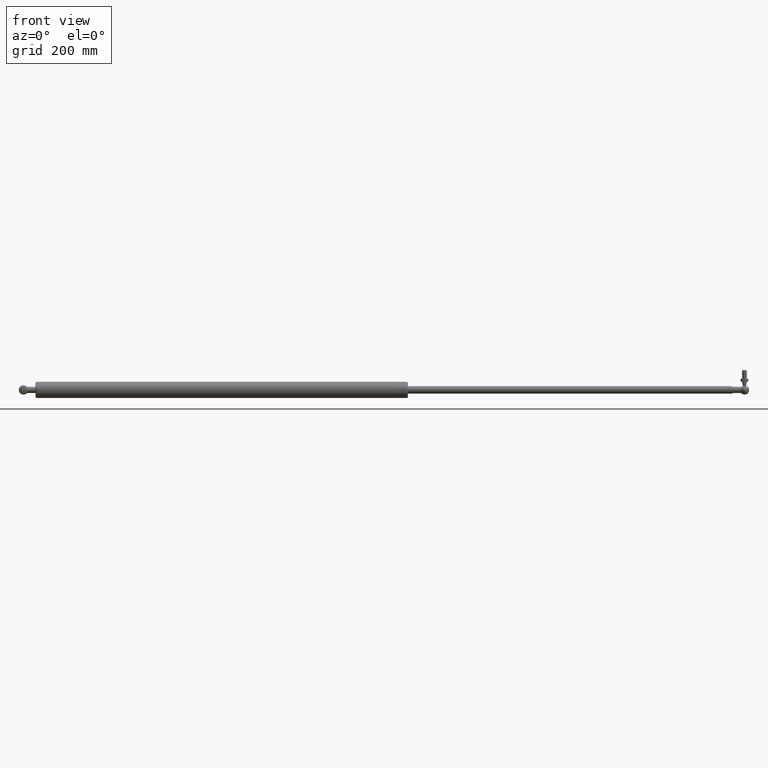
[diagram: clean part render]
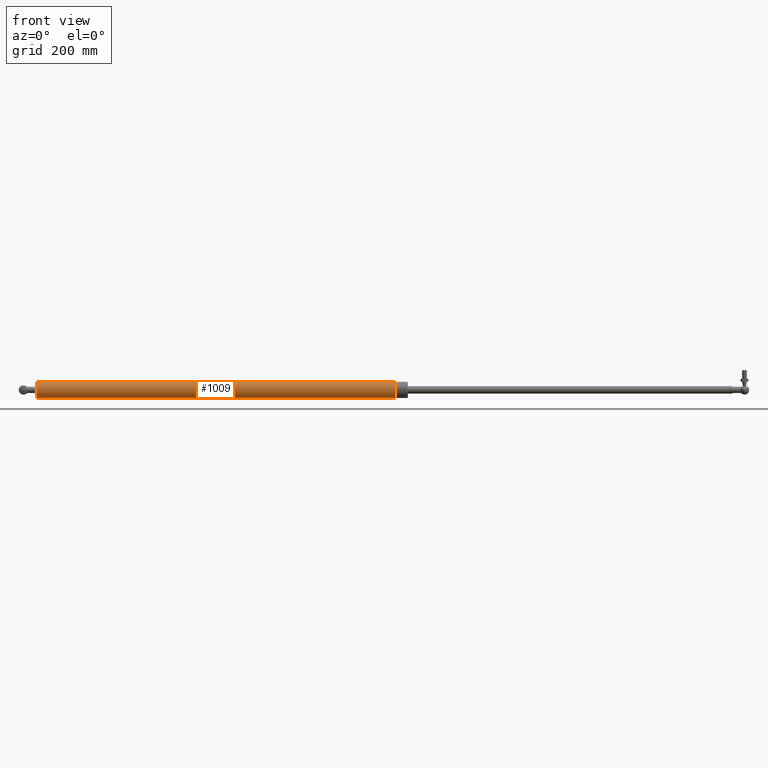
[diagram: same view with one face highlighted and labeled with its STEP entity id]
A machine part, front view. The second image highlights one B-rep face of the part: STEP entity #1009.
In plain terms, the highlighted cylindrical surface (bore or boss wall) has radius 13.5 mm, axis along (1, 0, 0).
Its self-contained STEP definition (entity closure, byte-faithful):
#245=FACE_BOUND('',#359,.T.);
#283=FACE_OUTER_BOUND('',#358,.T.);
#358=EDGE_LOOP('',(#743));
#359=EDGE_LOOP('',(#744));
#453=CIRCLE('',#1085,13.5000000000001);
#459=CIRCLE('',#1094,13.5);
#504=VERTEX_POINT('',#1456);
#510=VERTEX_POINT('',#1471);
#603=EDGE_CURVE('',#504,#504,#453,.T.);
#609=EDGE_CURVE('',#510,#510,#459,.T.);
#743=ORIENTED_EDGE('',*,*,#603,.F.);
#744=ORIENTED_EDGE('',*,*,#609,.F.);
#990=CYLINDRICAL_SURFACE('',#1096,13.5);
#1009=ADVANCED_FACE('',(#283,#245),#990,.T.);
#1085=AXIS2_PLACEMENT_3D('',#1457,#1204,#1205);
#1094=AXIS2_PLACEMENT_3D('',#1472,#1222,#1223);
#1096=AXIS2_PLACEMENT_3D('',#1474,#1226,#1227);
#1204=DIRECTION('center_axis',(-1.,0.,0.));
#1205=DIRECTION('ref_axis',(0.,0.,1.));
#1222=DIRECTION('center_axis',(1.,0.,0.));
#1223=DIRECTION('ref_axis',(0.,1.22464679914735E-16,-1.));
#1226=DIRECTION('center_axis',(-1.,0.,0.));
#1227=DIRECTION('ref_axis',(0.,0.,1.));
#1456=CARTESIAN_POINT('',(21.5,0.,13.5000000000001));
#1457=CARTESIAN_POINT('Origin',(21.5,0.,0.));
#1471=CARTESIAN_POINT('',(617.499798224342,-3.30654635769786E-15,13.5));
#1472=CARTESIAN_POINT('Origin',(617.499798224342,0.,0.));
#1474=CARTESIAN_POINT('Origin',(320.499899112171,0.,0.));